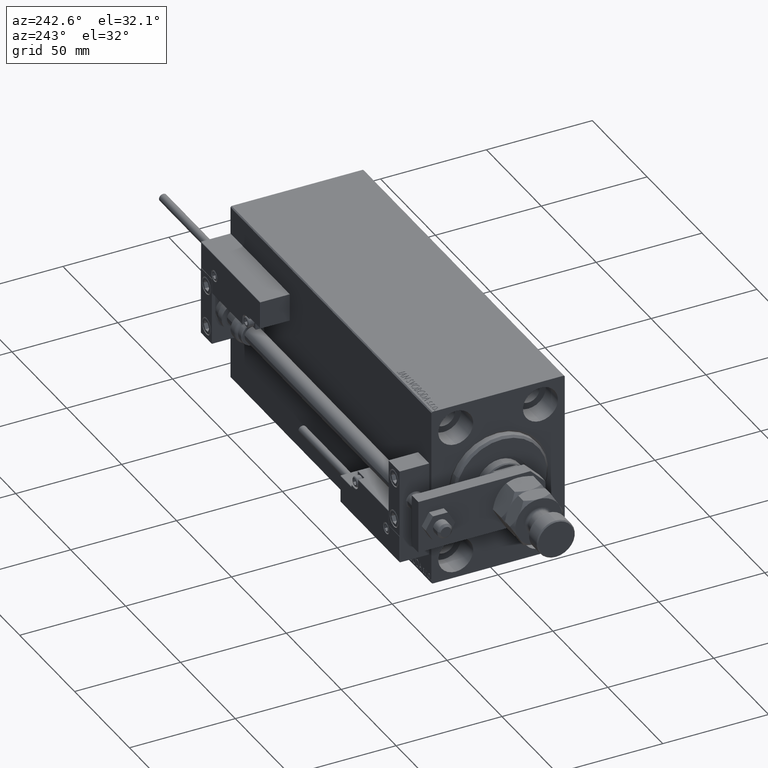
[diagram: clean part render]
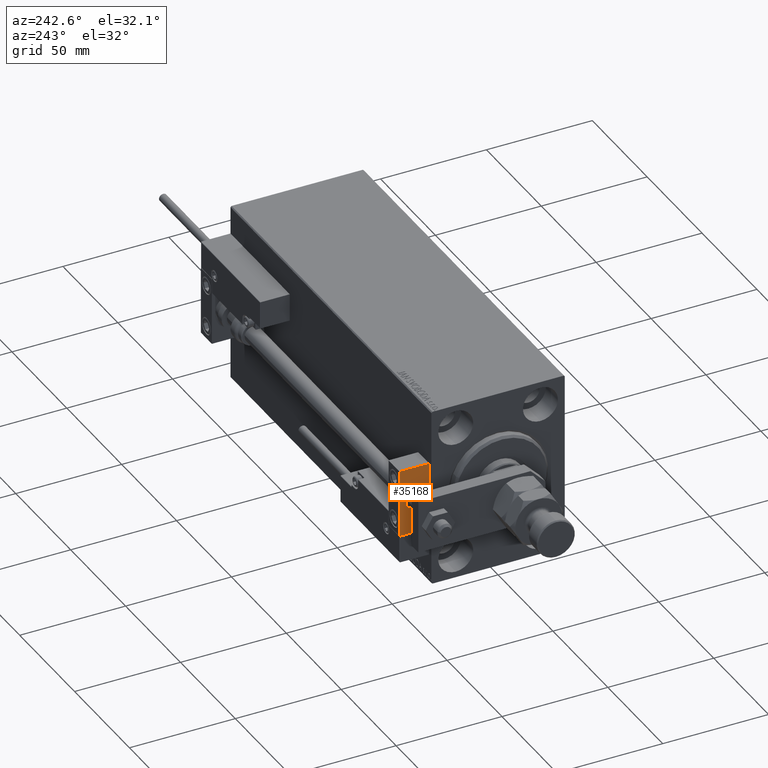
[diagram: same view with one face highlighted and labeled with its STEP entity id]
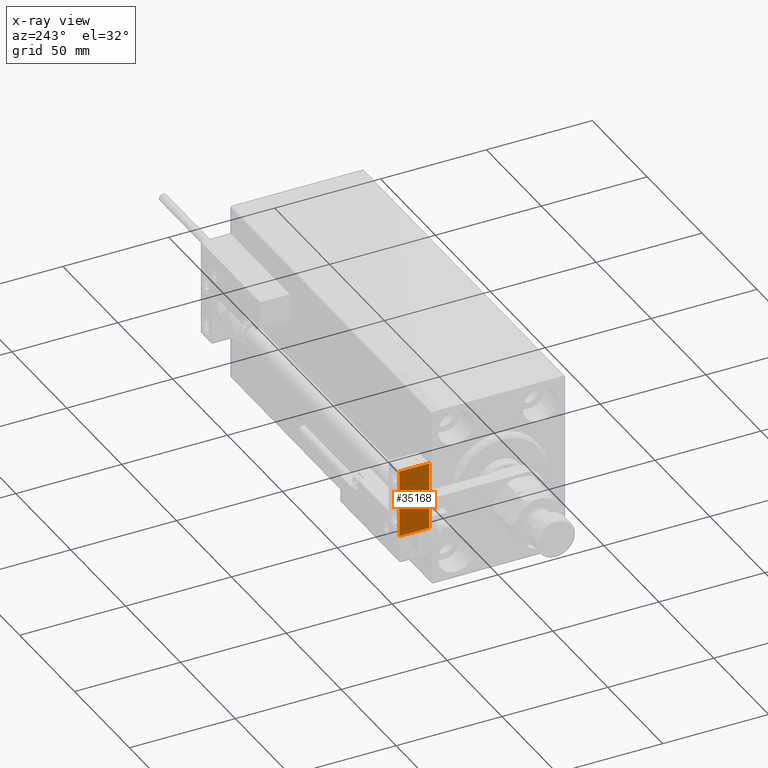
[diagram: x-ray of the same camera — body ghosted, the highlighted face saturated]
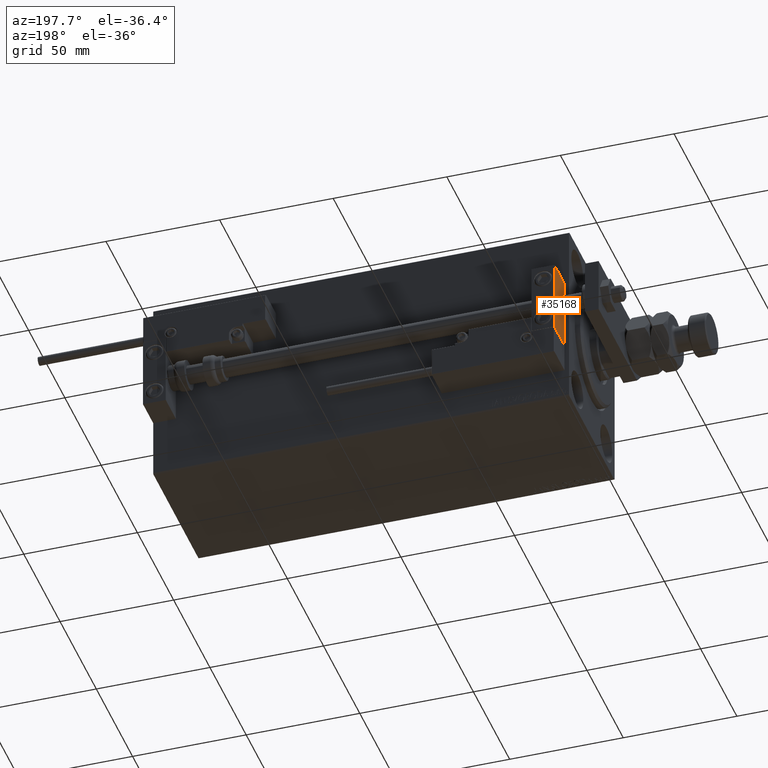
[diagram: same view with one face highlighted and labeled with its STEP entity id]
A machine part, auxiliary view. The second image highlights one B-rep face of the part: STEP entity #35168.
The next image is the same camera in x-ray: the body ghosted, the highlighted face saturated — about 0% of this face is hidden behind the body in this view.
A second angle (auxiliary view) of the same face is appended — the face is thin or edge-on in the first view.
In plain terms, the highlighted planar face has unit normal (1, 0, -0).
Its self-contained STEP definition (entity closure, byte-faithful):
#981 = ORIENTED_EDGE ( 'NONE', *, *, #14139, .F. ) ;
#3147 = CARTESIAN_POINT ( 'NONE',  ( 10.00000000000000000, 0.000000000000000000, 4.000000000000000000 ) ) ;
#3227 = DIRECTION ( 'NONE',  ( -1.000000000000000000, 0.000000000000000000, 0.000000000000000000 ) ) ;
#3432 = ORIENTED_EDGE ( 'NONE', *, *, #50164, .F. ) ;
#3482 = CARTESIAN_POINT ( 'NONE',  ( 10.00000000000000000, 7.000000000000000000, -16.00000000000000711 ) ) ;
#6869 = LINE ( 'NONE', #23618, #45780 ) ;
#7089 = DIRECTION ( 'NONE',  ( 0.000000000000000000, 0.000000000000000000, -1.000000000000000000 ) ) ;
#7152 = ORIENTED_EDGE ( 'NONE', *, *, #15462, .T. ) ;
#7424 = CIRCLE ( 'NONE', #48353, 4.000000000000000000 ) ;
#8566 = EDGE_CURVE ( 'NONE', #8833, #14566, #6869, .T. ) ;
#8833 = VERTEX_POINT ( 'NONE', #18847 ) ;
#9967 = DIRECTION ( 'NONE',  ( -1.000000000000000000, 0.000000000000000000, -0.000000000000000000 ) ) ;
#10217 = CARTESIAN_POINT ( 'NONE',  ( 10.00000000000000000, 0.000000000000000000, 0.000000000000000000 ) ) ;
#10830 = DIRECTION ( 'NONE',  ( 0.000000000000000000, 0.000000000000000000, 1.000000000000000000 ) ) ;
#12708 = AXIS2_PLACEMENT_3D ( 'NONE', #26841, #51424, #35241 ) ;
#14139 = EDGE_CURVE ( 'NONE', #8833, #30417, #14941, .T. ) ;
#14566 = VERTEX_POINT ( 'NONE', #41205 ) ;
#14941 = LINE ( 'NONE', #30919, #42068 ) ;
#15134 = AXIS2_PLACEMENT_3D ( 'NONE', #10217, #9967, #22514 ) ;
#15462 = EDGE_CURVE ( 'NONE', #14566, #29499, #37611, .T. ) ;
#16233 = VECTOR ( 'NONE', #20624, 1000.000000000000000 ) ;
#17261 = ORIENTED_EDGE ( 'NONE', *, *, #8566, .T. ) ;
#18847 = CARTESIAN_POINT ( 'NONE',  ( 10.00000000000000000, 7.000000000000000000, 15.99999999999999289 ) ) ;
#19359 = VERTEX_POINT ( 'NONE', #31323 ) ;
#20624 = DIRECTION ( 'NONE',  ( 0.000000000000000000, 0.000000000000000000, -1.000000000000000000 ) ) ;
#22287 = ORIENTED_EDGE ( 'NONE', *, *, #43773, .T. ) ;
#22514 = DIRECTION ( 'NONE',  ( -0.000000000000000000, 0.000000000000000000, 1.000000000000000000 ) ) ;
#23413 = VECTOR ( 'NONE', #32029, 1000.000000000000000 ) ;
#23618 = CARTESIAN_POINT ( 'NONE',  ( 10.00000000000000000, 7.000000000000000000, 15.99999999999999289 ) ) ;
#23951 = EDGE_LOOP ( 'NONE', ( #7152, #3432, #981, #17261 ) ) ;
#26634 = ORIENTED_EDGE ( 'NONE', *, *, #37807, .T. ) ;
#26702 = FACE_OUTER_BOUND ( 'NONE', #23951, .T. ) ;
#26841 = CARTESIAN_POINT ( 'NONE',  ( 10.00000000000000000, 0.000000000000000000, 0.000000000000000000 ) ) ;
#29499 = VERTEX_POINT ( 'NONE', #50206 ) ;
#30417 = VERTEX_POINT ( 'NONE', #37939 ) ;
#30919 = CARTESIAN_POINT ( 'NONE',  ( 10.00000000000000000, 7.000000000000000000, 15.99999999999999289 ) ) ;
#31323 = CARTESIAN_POINT ( 'NONE',  ( 10.00000000000000000, 4.898587196589412829E-16, -4.000000000000000000 ) ) ;
#32029 = DIRECTION ( 'NONE',  ( 0.000000000000000000, -1.000000000000000000, 0.000000000000000000 ) ) ;
#32934 = CARTESIAN_POINT ( 'NONE',  ( 10.00000000000000000, -7.000000000000000000, 15.99999999999999289 ) ) ;
#33287 = EDGE_LOOP ( 'NONE', ( #26634, #22287 ) ) ;
#35168 = ADVANCED_FACE ( 'NONE', ( #49979, #26702 ), #46572, .F. ) ;
#35241 = DIRECTION ( 'NONE',  ( 0.000000000000000000, 0.000000000000000000, 1.000000000000000000 ) ) ;
#37611 = LINE ( 'NONE', #32934, #16233 ) ;
#37807 = EDGE_CURVE ( 'NONE', #49515, #19359, #43636, .T. ) ;
#37939 = CARTESIAN_POINT ( 'NONE',  ( 10.00000000000000000, 7.000000000000000000, -16.00000000000000711 ) ) ;
#38541 = DIRECTION ( 'NONE',  ( 0.000000000000000000, -1.000000000000000000, 0.000000000000000000 ) ) ;
#39078 = LINE ( 'NONE', #3482, #23413 ) ;
#41205 = CARTESIAN_POINT ( 'NONE',  ( 10.00000000000000000, -7.000000000000000000, 15.99999999999999289 ) ) ;
#42068 = VECTOR ( 'NONE', #7089, 1000.000000000000000 ) ;
#43636 = CIRCLE ( 'NONE', #12708, 4.000000000000000000 ) ;
#43773 = EDGE_CURVE ( 'NONE', #19359, #49515, #7424, .T. ) ;
#45780 = VECTOR ( 'NONE', #38541, 1000.000000000000000 ) ;
#46572 = PLANE ( 'NONE',  #15134 ) ;
#48353 = AXIS2_PLACEMENT_3D ( 'NONE', #50324, #3227, #10830 ) ;
#49515 = VERTEX_POINT ( 'NONE', #3147 ) ;
#49979 = FACE_BOUND ( 'NONE', #33287, .T. ) ;
#50164 = EDGE_CURVE ( 'NONE', #30417, #29499, #39078, .T. ) ;
#50206 = CARTESIAN_POINT ( 'NONE',  ( 10.00000000000000000, -7.000000000000000000, -16.00000000000000711 ) ) ;
#50324 = CARTESIAN_POINT ( 'NONE',  ( 10.00000000000000000, 0.000000000000000000, 0.000000000000000000 ) ) ;
#51424 = DIRECTION ( 'NONE',  ( -1.000000000000000000, 0.000000000000000000, 0.000000000000000000 ) ) ;